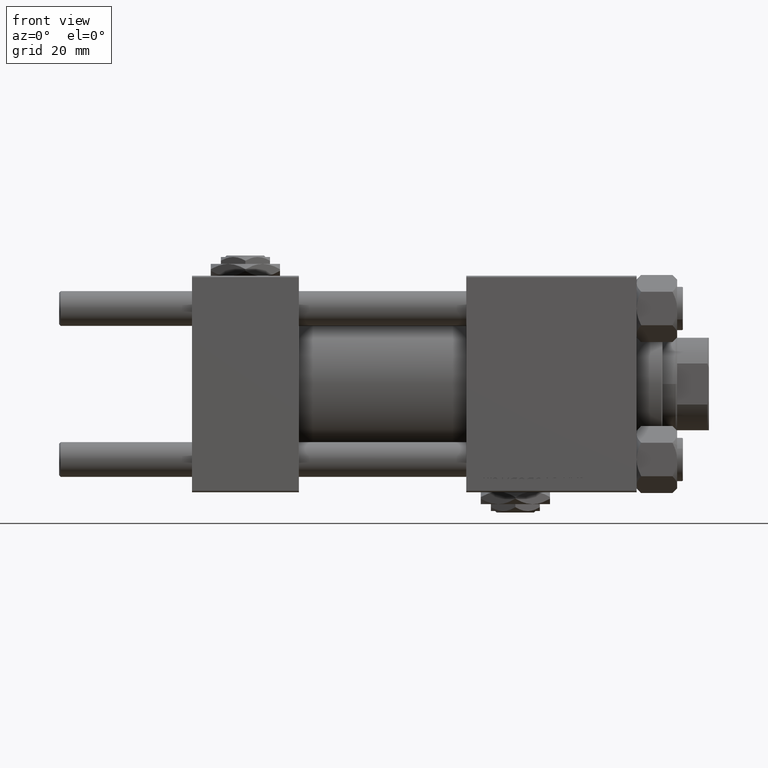
[diagram: clean part render]
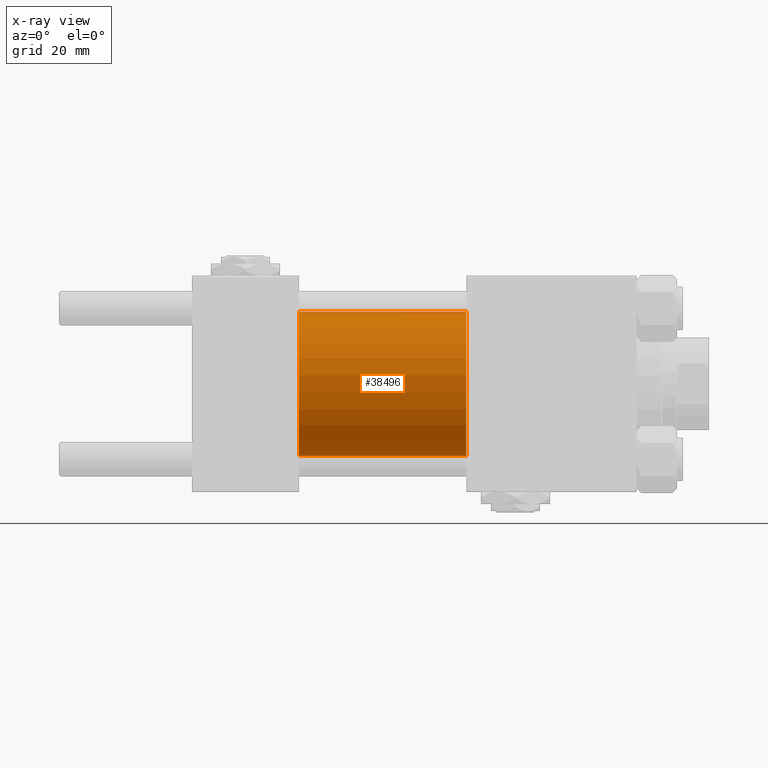
[diagram: x-ray — body ghosted, one internal face saturated and labeled with its STEP entity id]
A machine part, front view, then the same camera in x-ray: the body is ghosted and one INTERNAL B-rep face — a face not visible from any outside direction — is saturated and labeled: STEP entity #38496.
In plain terms, the highlighted cylindrical surface (partial cylindrical patch) has radius 25 mm, axis along (-1, -0, -0).
Its self-contained STEP definition (entity closure, byte-faithful):
#511 = CARTESIAN_POINT ( 'NONE',  ( 95.00000000000000000, 0.000000000000000000, 0.000000000000000000 ) ) ;
#1447 = CIRCLE ( 'NONE', #50755, 25.00000000000000000 ) ;
#2939 = ORIENTED_EDGE ( 'NONE', *, *, #33216, .T. ) ;
#5066 = CARTESIAN_POINT ( 'NONE',  ( 37.00000000000000000, 0.000000000000000000, 0.000000000000000000 ) ) ;
#5115 = VERTEX_POINT ( 'NONE', #10023 ) ;
#6922 = CIRCLE ( 'NONE', #11093, 25.00000000000000000 ) ;
#9146 = AXIS2_PLACEMENT_3D ( 'NONE', #25663, #10209, #13888 ) ;
#10023 = CARTESIAN_POINT ( 'NONE',  ( 37.00000000000000000, 3.061616997868382254E-15, -25.00000000000000000 ) ) ;
#10121 = EDGE_CURVE ( 'NONE', #38831, #5115, #6922, .T. ) ;
#10209 = DIRECTION ( 'NONE',  ( -1.000000000000000000, -0.000000000000000000, -0.000000000000000000 ) ) ;
#11093 = AXIS2_PLACEMENT_3D ( 'NONE', #5066, #37230, #32290 ) ;
#11483 = EDGE_LOOP ( 'NONE', ( #2939, #19824, #25577, #34261 ) ) ;
#11963 = CARTESIAN_POINT ( 'NONE',  ( 95.00000000000000000, 3.061616997868382254E-15, -25.00000000000000000 ) ) ;
#12490 = DIRECTION ( 'NONE',  ( -1.000000000000000000, -0.000000000000000000, -0.000000000000000000 ) ) ;
#13888 = DIRECTION ( 'NONE',  ( 0.000000000000000000, 0.000000000000000000, 1.000000000000000000 ) ) ;
#15445 = DIRECTION ( 'NONE',  ( 0.000000000000000000, 0.000000000000000000, -1.000000000000000000 ) ) ;
#17046 = EDGE_CURVE ( 'NONE', #31442, #38831, #48360, .T. ) ;
#17237 = CARTESIAN_POINT ( 'NONE',  ( 37.00000000000000000, 0.000000000000000000, 25.00000000000000000 ) ) ;
#19286 = LINE ( 'NONE', #23190, #27360 ) ;
#19824 = ORIENTED_EDGE ( 'NONE', *, *, #46107, .T. ) ;
#23190 = CARTESIAN_POINT ( 'NONE',  ( 95.00000000000000000, 3.061616997868382254E-15, -25.00000000000000000 ) ) ;
#25577 = ORIENTED_EDGE ( 'NONE', *, *, #10121, .F. ) ;
#25663 = CARTESIAN_POINT ( 'NONE',  ( 95.00000000000000000, 0.000000000000000000, 0.000000000000000000 ) ) ;
#26075 = VECTOR ( 'NONE', #12490, 1000.000000000000000 ) ;
#27360 = VECTOR ( 'NONE', #39158, 1000.000000000000000 ) ;
#31442 = VERTEX_POINT ( 'NONE', #33817 ) ;
#32290 = DIRECTION ( 'NONE',  ( 0.000000000000000000, 0.000000000000000000, -1.000000000000000000 ) ) ;
#33216 = EDGE_CURVE ( 'NONE', #31442, #39098, #1447, .T. ) ;
#33817 = CARTESIAN_POINT ( 'NONE',  ( 95.00000000000000000, 0.000000000000000000, 25.00000000000000000 ) ) ;
#34261 = ORIENTED_EDGE ( 'NONE', *, *, #17046, .F. ) ;
#37230 = DIRECTION ( 'NONE',  ( 1.000000000000000000, 0.000000000000000000, 0.000000000000000000 ) ) ;
#37960 = FACE_OUTER_BOUND ( 'NONE', #11483, .T. ) ;
#38496 = ADVANCED_FACE ( 'NONE', ( #37960 ), #46083, .F. ) ;
#38831 = VERTEX_POINT ( 'NONE', #17237 ) ;
#39098 = VERTEX_POINT ( 'NONE', #11963 ) ;
#39158 = DIRECTION ( 'NONE',  ( -1.000000000000000000, -0.000000000000000000, -0.000000000000000000 ) ) ;
#44413 = CARTESIAN_POINT ( 'NONE',  ( 95.00000000000000000, 0.000000000000000000, 25.00000000000000000 ) ) ;
#46083 = CYLINDRICAL_SURFACE ( 'NONE', #9146, 25.00000000000000000 ) ;
#46107 = EDGE_CURVE ( 'NONE', #39098, #5115, #19286, .T. ) ;
#48360 = LINE ( 'NONE', #44413, #26075 ) ;
#50755 = AXIS2_PLACEMENT_3D ( 'NONE', #511, #51323, #15445 ) ;
#51323 = DIRECTION ( 'NONE',  ( 1.000000000000000000, 0.000000000000000000, 0.000000000000000000 ) ) ;